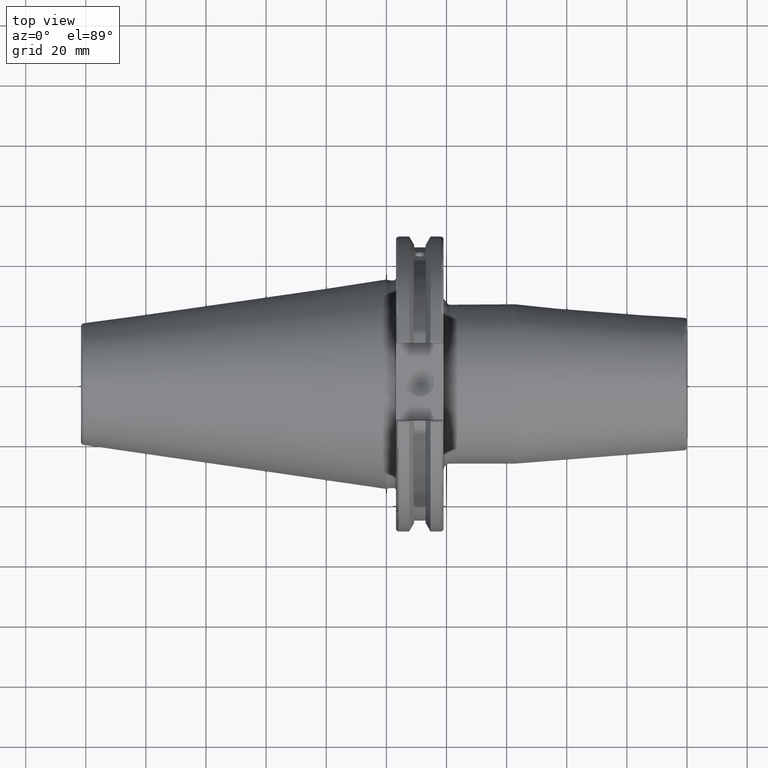
[diagram: clean part render]
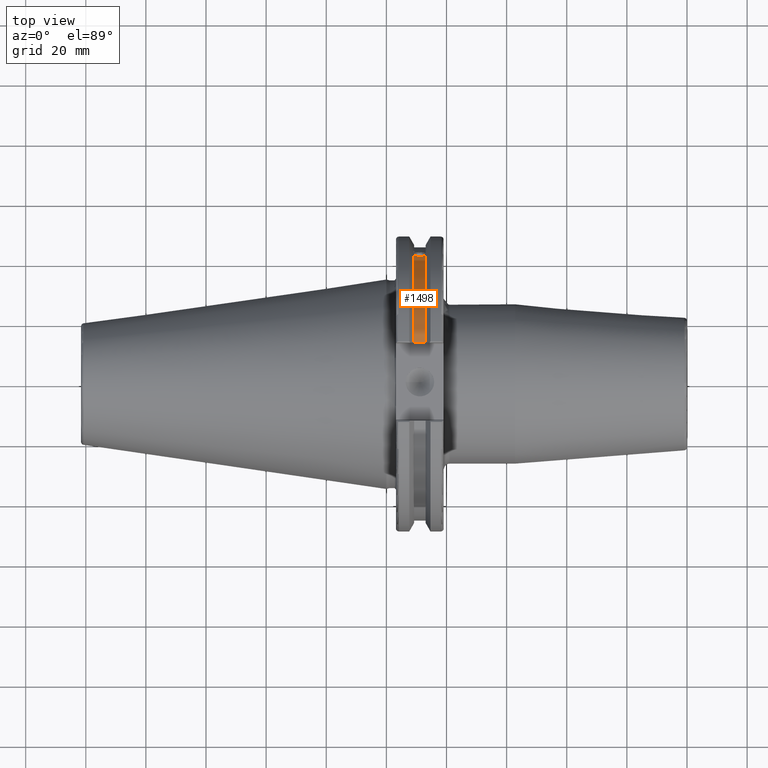
[diagram: same view with one face highlighted and labeled with its STEP entity id]
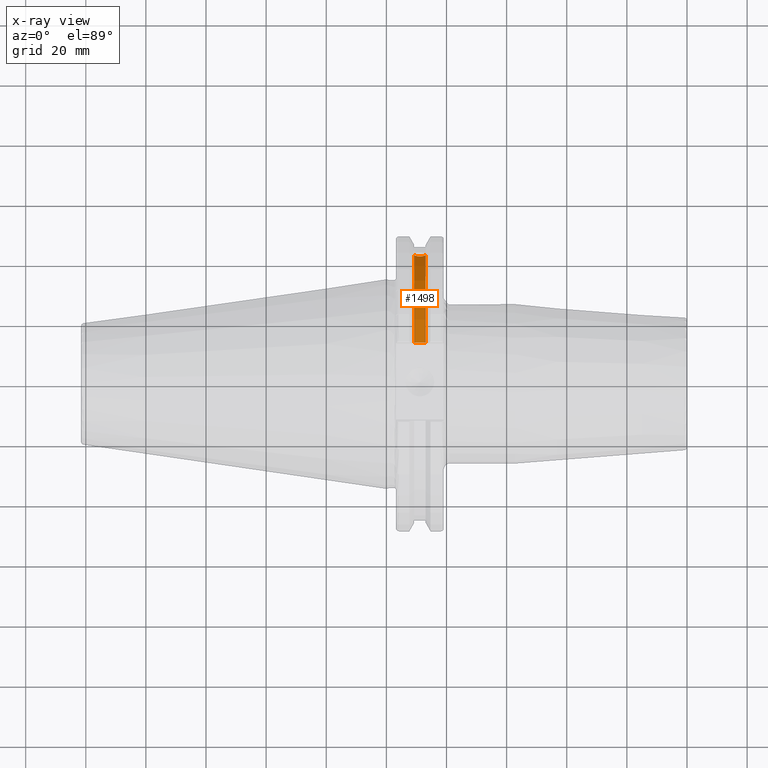
[diagram: x-ray of the same camera — body ghosted, the highlighted face saturated]
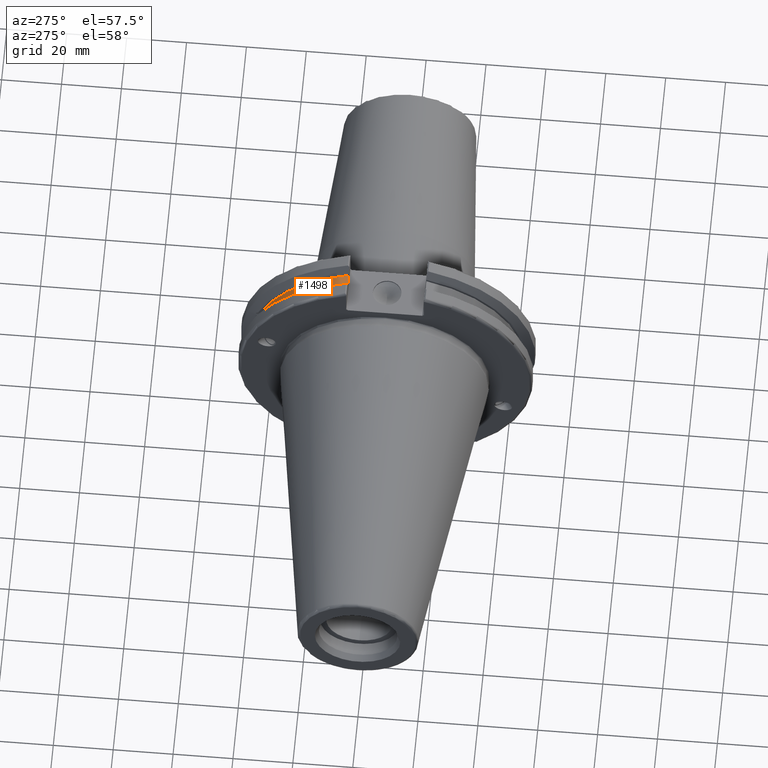
[diagram: same view with one face highlighted and labeled with its STEP entity id]
A machine part, top view. The second image highlights one B-rep face of the part: STEP entity #1498.
The next image is the same camera in x-ray: the body ghosted, the highlighted face saturated — about 0% of this face is hidden behind the body in this view.
A second angle (auxiliary view) of the same face is appended — the face is thin or edge-on in the first view.
In plain terms, the highlighted cylindrical surface (partial cylindrical patch) has radius 45.6435 mm, axis along (1, 0, 0).
Its self-contained STEP definition (entity closure, byte-faithful):
#53=B_SPLINE_CURVE_WITH_KNOTS('',3,(#2639,#2640,#2641,#2642,#2643,#2644,
#2645,#2646,#2647,#2648,#2649,#2650,#2651,#2652,#2653),.UNSPECIFIED.,.F.,
 .F.,(4,2,2,3,2,2,4),(-0.231381164054416,-0.158232381135623,-0.0791161905678115,
0.,0.0791161905678115,0.158232381135623,0.231381164054563),
 .UNSPECIFIED.);
#161=LINE('',#2975,#251);
#251=VECTOR('',#2026,10.);
#286=CYLINDRICAL_SURFACE('',#1675,45.6435);
#419=FACE_OUTER_BOUND('',#521,.T.);
#521=EDGE_LOOP('',(#1369,#1370,#1371,#1372));
#601=CIRCLE('',#1674,45.6435);
#602=CIRCLE('',#1676,45.6435);
#683=VERTEX_POINT('',#2636);
#684=VERTEX_POINT('',#2638);
#748=VERTEX_POINT('',#2972);
#749=VERTEX_POINT('',#2974);
#853=EDGE_CURVE('',#684,#683,#53,.T.);
#952=EDGE_CURVE('',#749,#748,#161,.T.);
#966=EDGE_CURVE('',#684,#748,#601,.T.);
#967=EDGE_CURVE('',#683,#749,#602,.T.);
#1369=ORIENTED_EDGE('',*,*,#853,.T.);
#1370=ORIENTED_EDGE('',*,*,#967,.T.);
#1371=ORIENTED_EDGE('',*,*,#952,.T.);
#1372=ORIENTED_EDGE('',*,*,#966,.F.);
#1498=ADVANCED_FACE('',(#419),#286,.T.);
#1674=AXIS2_PLACEMENT_3D('',#3006,#2065,#2066);
#1675=AXIS2_PLACEMENT_3D('',#3007,#2067,#2068);
#1676=AXIS2_PLACEMENT_3D('',#3008,#2069,#2070);
#2026=DIRECTION('',(1.,0.,0.));
#2065=DIRECTION('center_axis',(1.,0.,0.));
#2066=DIRECTION('ref_axis',(0.,0.,-1.));
#2067=DIRECTION('center_axis',(1.,0.,0.));
#2068=DIRECTION('ref_axis',(0.,1.,0.));
#2069=DIRECTION('center_axis',(1.,0.,0.));
#2070=DIRECTION('ref_axis',(0.,0.,-1.));
#2636=CARTESIAN_POINT('',(9.2191,42.5884454651059,16.4180816515115));
#2638=CARTESIAN_POINT('',(13.0491,42.5884454651059,16.4180816515115));
#2639=CARTESIAN_POINT('Ctrl Pts',(13.0491,42.5884454651059,16.4180816515115));
#2640=CARTESIAN_POINT('Ctrl Pts',(12.9428782240206,42.5035323832641,16.6383458840848));
#2641=CARTESIAN_POINT('Ctrl Pts',(12.791391924423,42.4245077186417,16.8380515255915));
#2642=CARTESIAN_POINT('Ctrl Pts',(12.4325949659982,42.2908173017388,17.1712159412199));
#2643=CARTESIAN_POINT('Ctrl Pts',(12.1964796719457,42.2294695309474,17.3208689126276));
#2644=CARTESIAN_POINT('Ctrl Pts',(11.6790940832128,42.1475978938586,17.5191491957165));
#2645=CARTESIAN_POINT('Ctrl Pts',(11.397820635226,42.1271980081205,17.5678194501937));
#2646=CARTESIAN_POINT('Ctrl Pts',(11.1341,42.1271980081205,17.5678194501937));
#2647=CARTESIAN_POINT('Ctrl Pts',(10.870379364774,42.1271980081205,17.5678194501937));
#2648=CARTESIAN_POINT('Ctrl Pts',(10.5891059167872,42.1475978938586,17.5191491957165));
#2649=CARTESIAN_POINT('Ctrl Pts',(10.0717203280543,42.2294695309474,17.3208689126276));
#2650=CARTESIAN_POINT('Ctrl Pts',(9.83560503400179,42.2908173017388,17.1712159412199));
#2651=CARTESIAN_POINT('Ctrl Pts',(9.47680807557666,42.4245077186418,16.8380515255912));
#2652=CARTESIAN_POINT('Ctrl Pts',(9.32532177598177,42.5035323832622,16.6383458840897));
#2653=CARTESIAN_POINT('Ctrl Pts',(9.2191,42.5884454651059,16.4180816515115));
#2972=CARTESIAN_POINT('',(13.0491,12.95,43.7678716897452));
#2974=CARTESIAN_POINT('',(9.2191,12.95,43.7678716897452));
#2975=CARTESIAN_POINT('',(11.1341,12.95,43.7678716897452));
#3006=CARTESIAN_POINT('Origin',(13.0491,0.,0.));
#3007=CARTESIAN_POINT('Origin',(11.1341,0.,0.));
#3008=CARTESIAN_POINT('Origin',(9.2191,0.,0.));